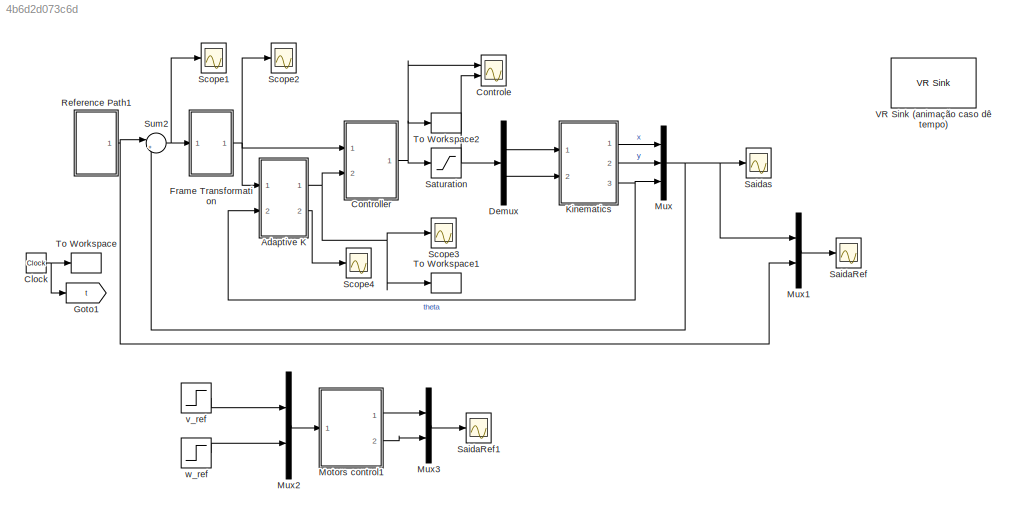
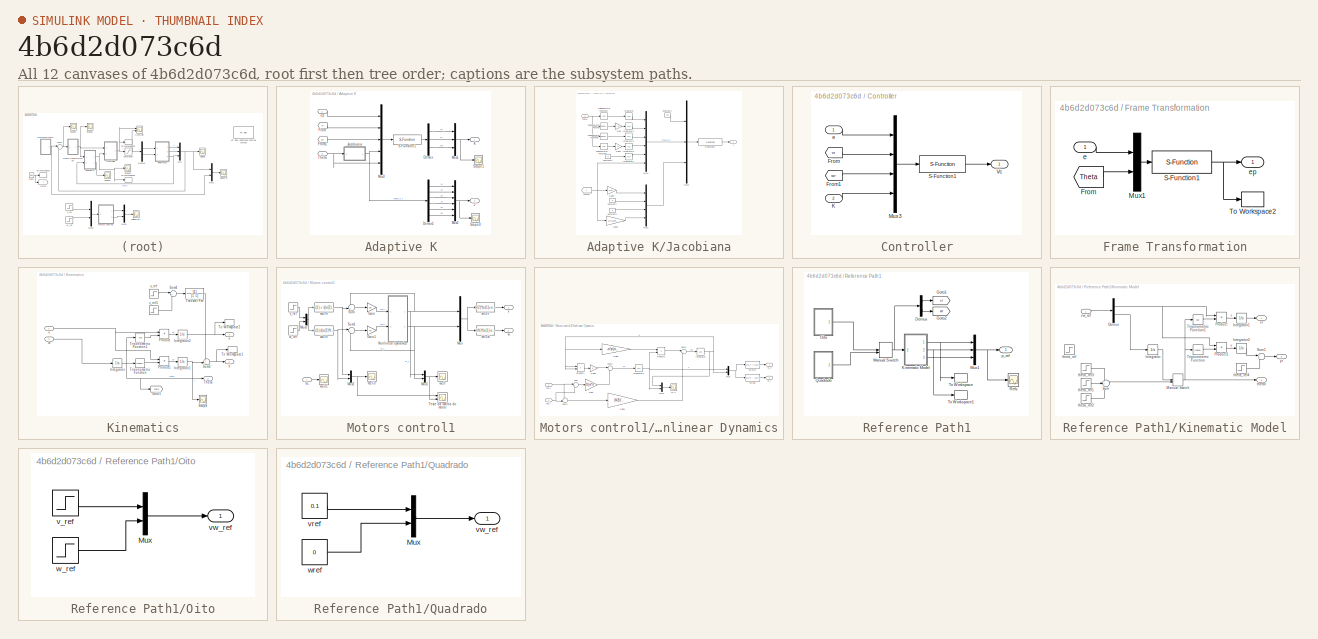
[diagram: thumbnail index - all 12 canvases of the model, root first then tree order]
MODEL slx_4b6d2d073c6d
KIND model
BLOCK [SubSystem] Adaptive K
  FunctionWithSeparateData = off
  MaskHideContents = off
  MinAlgLoopOccurrences = off
  Opaque = off
  Ports = [2, 2]
  PropExecContextOutsideSubsystem = off
  RTWSystemCode = Auto
  RequestExecContextInheritance = off
BLOCK [Demux] Adaptive K/Demux
  DisplayOption = bar
  Outputs = 3
  Ports = [1, 3]
BLOCK [Demux] Adaptive K/Demux1
  DisplayOption = bar
  Outputs = 6
  Ports = [1, 6]
BLOCK [From] Adaptive K/From
  GotoTag = vr
  TagVisibility = global
BLOCK [From] Adaptive K/From1
  GotoTag = wr
  TagVisibility = global
BLOCK [Outport] Adaptive K/J
  IconDisplay = Port number
  Port = 2
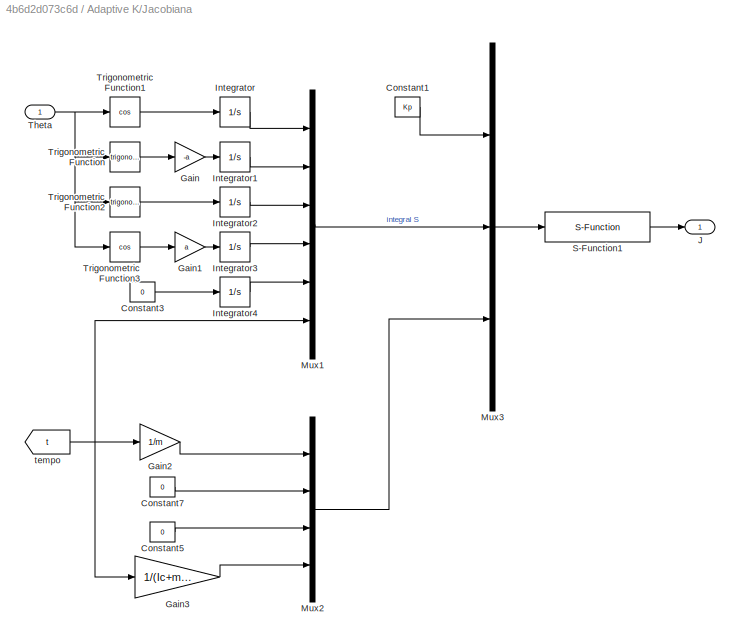
BLOCK [SubSystem] Adaptive K/Jacobiana
  FunctionWithSeparateData = off
  MaskHideContents = off
  MinAlgLoopOccurrences = off
  Opaque = off
  Ports = [1, 1]
  PropExecContextOutsideSubsystem = off
  RTWSystemCode = Auto
  RequestExecContextInheritance = off
BLOCK [Constant] Adaptive K/Jacobiana/Constant1
  SampleTime = Ts
  Value = Kp
BLOCK [Constant] Adaptive K/Jacobiana/Constant3
  SampleTime = Ts
  Value = 0
BLOCK [Constant] Adaptive K/Jacobiana/Constant5
  SampleTime = Ts
  Value = 0
BLOCK [Constant] Adaptive K/Jacobiana/Constant7
  SampleTime = Ts
  Value = 0
BLOCK [Gain] Adaptive K/Jacobiana/Gain
  Gain = -a
  OutDataTypeStr = Inherit: Inherit via internal rule
  ParamDataTypeStr = Inherit: Inherit via internal rule
  SaturateOnIntegerOverflow = off
BLOCK [Gain] Adaptive K/Jacobiana/Gain1
  Gain = a
  OutDataTypeStr = Inherit: Inherit via internal rule
  ParamDataTypeStr = Inherit: Inherit via internal rule
  SaturateOnIntegerOverflow = off
BLOCK [Gain] Adaptive K/Jacobiana/Gain2
  Gain = 1/m
  OutDataTypeStr = Inherit: Inherit via internal rule
  ParamDataTypeStr = Inherit: Inherit via internal rule
  SaturateOnIntegerOverflow = off
BLOCK [Gain] Adaptive K/Jacobiana/Gain3
  Gain = 1/(Ic+m*a*a)
  OutDataTypeStr = Inherit: Inherit via internal rule
  ParamDataTypeStr = Inherit: Inherit via internal rule
  SaturateOnIntegerOverflow = off
BLOCK [Integrator] Adaptive K/Jacobiana/Integrator
  Ports = [1, 1]
BLOCK [Integrator] Adaptive K/Jacobiana/Integrator1
  Ports = [1, 1]
BLOCK [Integrator] Adaptive K/Jacobiana/Integrator2
  Ports = [1, 1]
BLOCK [Integrator] Adaptive K/Jacobiana/Integrator3
  Ports = [1, 1]
BLOCK [Integrator] Adaptive K/Jacobiana/Integrator4
  Ports = [1, 1]
BLOCK [Outport] Adaptive K/Jacobiana/J
  IconDisplay = Port number
BLOCK [Mux] Adaptive K/Jacobiana/Mux1
  DisplayOption = bar
  Inputs = 6
  Ports = [6, 1]
BLOCK [Mux] Adaptive K/Jacobiana/Mux2
  DisplayOption = bar
  Ports = [4, 1]
BLOCK [Mux] Adaptive K/Jacobiana/Mux3
  DisplayOption = bar
  Inputs = 3
  Ports = [3, 1]
BLOCK [S-Function] Adaptive K/Jacobiana/S-Function1
  EnableBusSupport = off
  FunctionName = sfunc_adaptativo_J
  Parameters = Ts
  Ports = [1, 1]
BLOCK [Inport] Adaptive K/Jacobiana/Theta
  IconDisplay = Port number
BLOCK [Trigonometry] Adaptive K/Jacobiana/Trigonometric Function
  Ports = [1, 1]
BLOCK [Trigonometry] Adaptive K/Jacobiana/Trigonometric Function1
  Operator = cos
  Ports = [1, 1]
  SampleTime = Ts
BLOCK [Trigonometry] Adaptive K/Jacobiana/Trigonometric Function2
  Ports = [1, 1]
BLOCK [Trigonometry] Adaptive K/Jacobiana/Trigonometric Function3
  Operator = cos
  Ports = [1, 1]
BLOCK [From] Adaptive K/Jacobiana/tempo
  GotoTag = t
  TagVisibility = global
BLOCK [Outport] Adaptive K/K
  IconDisplay = Port number
BLOCK [Mux] Adaptive K/Mux1
  DisplayOption = bar
  Inputs = 3
  Ports = [3, 1]
BLOCK [Mux] Adaptive K/Mux2
  DisplayOption = bar
  Inputs = 6
  Ports = [6, 1]
BLOCK [Mux] Adaptive K/Mux3
  DisplayOption = bar
  Inputs = 5
  Ports = [5, 1]
BLOCK [S-Function] Adaptive K/S-Function1
  EnableBusSupport = off
  FunctionName = sfunc_adaptativo
  Parameters = Ts
  Ports = [1, 1]
BLOCK [Scope] Adaptive K/Scope1
  DataFormat = StructureWithTime
  Floating = off
  LegendLocations = 0.84833     0.79315    0.051245    0.074988
  LimitDataPoints = off
  NumInputPorts = 1
  Ports = [1]
  SampleTime = 0
  SaveName = ScopeData14
  ShowLegends = on
  TimeRange = 10
  YMax = 220
  YMin = -100
  ZoomMode = xonly
BLOCK [Scope] Adaptive K/Scope4
  DataFormat = StructureWithTime
  Floating = off
  LegendLocations = 0.80819     0.63486     0.13346     0.26523
  LimitDataPoints = off
  NumInputPorts = 1
  Ports = [1]
  SampleTime = 0
  SaveName = ScopeData13
  ShowLegends = on
  TimeRange = 10
BLOCK [Inport] Adaptive K/Theta
  IconDisplay = Port number
  Port = 2
BLOCK [Inport] Adaptive K/ep
  IconDisplay = Port number
BLOCK [Clock] Clock
  Decimation = 1
BLOCK [Scope] Controle
  DataFormat = StructureWithTime
  Floating = off
  LegendLocations = 0.82277     0.80197     0.13278    0.057416\n0.82037     0.32828     0.13756    0.057416
  LimitDataPoints = off
  NumInputPorts = 2
  Ports = [2]
  SampleTime = 0
  SaveName = ScopeData11
  ShowLegends = on
  TimeRange = 10
  YMax = 20~1.3e-08
  YMin = -5~-1e-08
  ZoomMode = yonly
BLOCK [SubSystem] Controller
  FunctionWithSeparateData = off
  MaskHideContents = off
  MinAlgLoopOccurrences = off
  Opaque = off
  Ports = [2, 1]
  PropExecContextOutsideSubsystem = off
  RTWSystemCode = Auto
  RequestExecContextInheritance = off
BLOCK [From] Controller/From
  GotoTag = vr
  TagVisibility = global
BLOCK [From] Controller/From1
  GotoTag = wr
  TagVisibility = global
BLOCK [Inport] Controller/K
  IconDisplay = Port number
  Port = 2
BLOCK [Mux] Controller/Mux3
  DisplayOption = bar
  Ports = [4, 1]
BLOCK [S-Function] Controller/S-Function1
  EnableBusSupport = off
  FunctionName = sfunc_K_thiago
  Parameters = Ts
  Ports = [1, 1]
BLOCK [Outport] Controller/Vc
  IconDisplay = Port number
BLOCK [Inport] Controller/e
  IconDisplay = Port number
BLOCK [Demux] Demux
  DisplayOption = bar
  Outputs = 2
  Ports = [1, 2]
BLOCK [SubSystem] Frame Transformation
  FunctionWithSeparateData = off
  MaskHideContents = off
  MinAlgLoopOccurrences = off
  Opaque = off
  Ports = [1, 1]
  PropExecContextOutsideSubsystem = off
  RTWSystemCode = Auto
  RequestExecContextInheritance = off
BLOCK [From] Frame Transformation/From
  GotoTag = Theta
  TagVisibility = global
BLOCK [Mux] Frame Transformation/Mux1
  DisplayOption = bar
  Inputs = 2
  Ports = [2, 1]
BLOCK [S-Function] Frame Transformation/S-Function1
  EnableBusSupport = off
  FunctionName = sfunc_Ep
  Parameters = Ts
  Ports = [1, 1]
BLOCK [ToWorkspace] Frame Transformation/To Workspace2
  MaxDataPoints = inf
  Ports = [1]
  SampleTime = Ts
  VariableName = ep
BLOCK [Inport] Frame Transformation/e
  IconDisplay = Port number
BLOCK [Outport] Frame Transformation/ep
  IconDisplay = Port number
BLOCK [Goto] Goto1
  GotoTag = t
  TagVisibility = global
BLOCK [SubSystem] Kinematics
  FunctionWithSeparateData = off
  MaskHideContents = off
  MinAlgLoopOccurrences = off
  Opaque = off
  Ports = [2, 3]
  PropExecContextOutsideSubsystem = off
  RTWSystemCode = Auto
  RequestExecContextInheritance = off
BLOCK [Goto] Kinematics/Goto1
  GotoTag = Theta
  TagVisibility = global
BLOCK [Integrator] Kinematics/Integrator
  InitialCondition = thetao
  Ports = [1, 1]
BLOCK [Integrator] Kinematics/Integrator1
  InitialCondition = yo
  Ports = [1, 1]
BLOCK [Integrator] Kinematics/Integrator2
  InitialCondition = xo
  Ports = [1, 1]
BLOCK [Product] Kinematics/Product
  InputSameDT = off
  OutDataTypeStr = Inherit: Inherit via internal rule
  Ports = [2, 1]
  RndMeth = Floor
  SaturateOnIntegerOverflow = off
BLOCK [Product] Kinematics/Product1
  InputSameDT = off
  OutDataTypeStr = Inherit: Inherit via internal rule
  Ports = [2, 1]
  RndMeth = Floor
  SaturateOnIntegerOverflow = off
BLOCK [Scope] Kinematics/Scope
  DataFormat = StructureWithTime
  Floating = off
  LimitDataPoints = off
  NumInputPorts = 1
  Ports = [1]
  SampleTime = 0
  SaveName = ScopeData1
  ShowLegends = off
  TimeRange = 10
  ZoomMode = xonly
BLOCK [Sum] Kinematics/Sum3
  IconShape = round
  InputSameDT = off
  Inputs = ++|
  OutDataTypeStr = Inherit: Inherit via internal rule
  Ports = [2, 1]
  SaturateOnIntegerOverflow = off
BLOCK [Sum] Kinematics/Sum4
  IconShape = round
  InputSameDT = off
  Inputs = |+-
  OutDataTypeStr = Inherit: Inherit via internal rule
  Ports = [2, 1]
  SaturateOnIntegerOverflow = off
BLOCK [Outport] Kinematics/Theta
  IconDisplay = Port number
  Port = 3
BLOCK [ToWorkspace] Kinematics/To Workspace1
  MaxDataPoints = inf
  Ports = [1]
  SampleTime = Ts
  VariableName = y_real
BLOCK [ToWorkspace] Kinematics/To Workspace2
  MaxDataPoints = inf
  Ports = [1]
  SampleTime = Ts
  VariableName = x_real
BLOCK [TransferFcn] Kinematics/Transfer Fcn
  Denominator = [1 1]
BLOCK [Trigonometry] Kinematics/Trigonometric Function
  Ports = [1, 1]
BLOCK [Trigonometry] Kinematics/Trigonometric Function1
  Operator = cos
  Ports = [1, 1]
BLOCK [Inport] Kinematics/v
  IconDisplay = Port number
BLOCK [Step] Kinematics/v_ref
  After = -0.1
  SampleTime = Ts
  Time = 80000
BLOCK [Step] Kinematics/v_ref1
  After = -0.1
  SampleTime = Ts
  Time = 810000
BLOCK [Inport] Kinematics/w
  IconDisplay = Port number
  Port = 2
BLOCK [Outport] Kinematics/x
  IconDisplay = Port number
BLOCK [Outport] Kinematics/y
  IconDisplay = Port number
  Port = 2
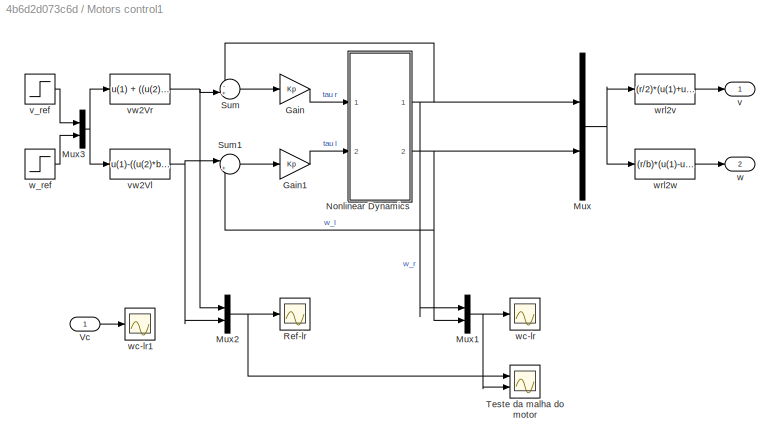
BLOCK [SubSystem] Motors control1
  Commented = on
  FunctionWithSeparateData = off
  MaskHideContents = off
  MinAlgLoopOccurrences = off
  Opaque = off
  Ports = [1, 2]
  PropExecContextOutsideSubsystem = off
  RTWSystemCode = Auto
  RequestExecContextInheritance = off
BLOCK [Gain] Motors control1/Gain
  Gain = Kp
  OutDataTypeStr = Inherit: Inherit via internal rule
  ParamDataTypeStr = Inherit: Inherit via internal rule
  SaturateOnIntegerOverflow = off
BLOCK [Gain] Motors control1/Gain1
  Gain = Kp
  OutDataTypeStr = Inherit: Inherit via internal rule
  ParamDataTypeStr = Inherit: Inherit via internal rule
  SaturateOnIntegerOverflow = off
BLOCK [Mux] Motors control1/Mux
  DisplayOption = bar
  Inputs = 2
  Ports = [2, 1]
BLOCK [Mux] Motors control1/Mux1
  DisplayOption = bar
  Inputs = 2
  Ports = [2, 1]
BLOCK [Mux] Motors control1/Mux2
  DisplayOption = bar
  Inputs = 2
  Ports = [2, 1]
BLOCK [Mux] Motors control1/Mux3
  DisplayOption = bar
  Inputs = 2
  Ports = [2, 1]
BLOCK [SubSystem] Motors control1/Nonlinear Dynamics
  FunctionWithSeparateData = off
  MaskHideContents = off
  MinAlgLoopOccurrences = off
  Opaque = off
  Ports = [2, 2]
  PropExecContextOutsideSubsystem = off
  RTWSystemCode = Auto
  RequestExecContextInheritance = off
BLOCK [Gain] Motors control1/Nonlinear Dynamics/Gain
  Gain = 1/(m*r)
  OutDataTypeStr = Inherit: Inherit via internal rule
  ParamDataTypeStr = Inherit: Inherit via internal rule
  SaturateOnIntegerOverflow = off
BLOCK [Gain] Motors control1/Nonlinear Dynamics/Gain1
  Gain = (b/2)/(r*(m*a*a+Ic))
  OutDataTypeStr = Inherit: Inherit via internal rule
  ParamDataTypeStr = Inherit: Inherit via internal rule
  SaturateOnIntegerOverflow = off
BLOCK [Gain] Motors control1/Nonlinear Dynamics/Gain2
  Gain = -m*a/(m*a*a+Ic)
  OutDataTypeStr = Inherit: Inherit via internal rule
  ParamDataTypeStr = Inherit: Inherit via internal rule
  SaturateOnIntegerOverflow = off
BLOCK [Gain] Motors control1/Nonlinear Dynamics/Gain3
  Gain = a
  OutDataTypeStr = Inherit: Inherit via internal rule
  ParamDataTypeStr = Inherit: Inherit via internal rule
  SaturateOnIntegerOverflow = off
BLOCK [Integrator] Motors control1/Nonlinear Dynamics/Integrator
  Ports = [1, 1]
BLOCK [Integrator] Motors control1/Nonlinear Dynamics/Integrator1
  Ports = [1, 1]
BLOCK [Mux] Motors control1/Nonlinear Dynamics/Mux
  DisplayOption = bar
  Inputs = 2
  Ports = [2, 1]
BLOCK [Mux] Motors control1/Nonlinear Dynamics/Mux1
  DisplayOption = bar
  Inputs = 2
  Ports = [2, 1]
BLOCK [Product] Motors control1/Nonlinear Dynamics/Product1
  InputSameDT = off
  OutDataTypeStr = Inherit: Inherit via internal rule
  Ports = [2, 1]
  RndMeth = Floor
  SaturateOnIntegerOverflow = off
BLOCK [Product] Motors control1/Nonlinear Dynamics/Product2
  InputSameDT = off
  OutDataTypeStr = Inherit: Inherit via internal rule
  Ports = [2, 1]
  RndMeth = Floor
  SampleTime = Ts
  SaturateOnIntegerOverflow = off
BLOCK [Sum] Motors control1/Nonlinear Dynamics/Sum
  IconShape = round
  InputSameDT = off
  Inputs = |++
  OutDataTypeStr = Inherit: Inherit via internal rule
  Ports = [2, 1]
  SaturateOnIntegerOverflow = off
BLOCK [Sum] Motors control1/Nonlinear Dynamics/Sum2
  IconShape = round
  InputSameDT = off
  Inputs = |++
  OutDataTypeStr = Inherit: Inherit via internal rule
  Ports = [2, 1]
  SaturateOnIntegerOverflow = off
BLOCK [Sum] Motors control1/Nonlinear Dynamics/Sum3
  IconShape = round
  InputSameDT = off
  Inputs = |++
  OutDataTypeStr = Inherit: Inherit via internal rule
  Ports = [2, 1]
  SaturateOnIntegerOverflow = off
BLOCK [Sum] Motors control1/Nonlinear Dynamics/Sum4
  IconShape = round
  InputSameDT = off
  Inputs = +-|
  OutDataTypeStr = Inherit: Inherit via internal rule
  Ports = [2, 1]
  SaturateOnIntegerOverflow = off
BLOCK [Inport] Motors control1/Nonlinear Dynamics/tau l
  IconDisplay = Port number
  Port = 2
BLOCK [Inport] Motors control1/Nonlinear Dynamics/tau r
  IconDisplay = Port number
BLOCK [Fcn] Motors control1/Nonlinear Dynamics/vw2Vl1
  Expr = u(1)/r - (u(2)*b/2)/r
BLOCK [Fcn] Motors control1/Nonlinear Dynamics/vw2Vr1
  Expr = u(1)/r + (u(2)*b/2)/r
BLOCK [Scope] Motors control1/Nonlinear Dynamics/w-u
  DataFormat = StructureWithTime
  Floating = off
  LimitDataPoints = off
  NumInputPorts = 1
  Ports = [1]
  SampleTime = 0
  SaveName = ScopeData15
  ShowLegends = off
  TimeRange = 10
  ZoomMode = yonly
BLOCK [Outport] Motors control1/Nonlinear Dynamics/w_l
  IconDisplay = Port number
  Port = 2
BLOCK [Outport] Motors control1/Nonlinear Dynamics/w_r
  IconDisplay = Port number
BLOCK [Scope] Motors control1/Ref-lr
  DataFormat = StructureWithTime
  Floating = off
  NumInputPorts = 1
  Ports = [1]
  SampleTime = 0
  SaveName = ScopeData7
  ShowLegends = off
  YMax = 20
  ZoomMode = xonly
BLOCK [Sum] Motors control1/Sum
  IconShape = round
  InputSameDT = off
  Inputs = -+|
  OutDataTypeStr = Inherit: Inherit via internal rule
  Ports = [2, 1]
  SaturateOnIntegerOverflow = off
BLOCK [Sum] Motors control1/Sum1
  IconShape = round
  InputSameDT = off
  Inputs = |+-
  OutDataTypeStr = Inherit: Inherit via internal rule
  Ports = [2, 1]
  SaturateOnIntegerOverflow = off
BLOCK [Scope] Motors control1/Teste da malha do motor
  DataFormat = StructureWithTime
  Floating = off
  NumInputPorts = 2
  Ports = [2]
  SampleTime = 0
  SaveName = ScopeData10
  ShowLegends = off
  YMax = 5~5
  YMin = -5~-5
  ZoomMode = xonly
BLOCK [Inport] Motors control1/Vc
  IconDisplay = Port number
BLOCK [Outport] Motors control1/v
  IconDisplay = Port number
BLOCK [Step] Motors control1/v_ref
  SampleTime = Ts
  Time = 10
BLOCK [Fcn] Motors control1/vw2Vl
  Expr = u(1)-((u(2)*b)/2)
BLOCK [Fcn] Motors control1/vw2Vr
  Expr = u(1) + ((u(2)*b)/2)
BLOCK [Outport] Motors control1/w
  IconDisplay = Port number
  Port = 2
BLOCK [Step] Motors control1/w_ref
  After = pi/2
  SampleTime = Ts
  Time = 12
BLOCK [Scope] Motors control1/wc-lr
  DataFormat = StructureWithTime
  Floating = off
  NumInputPorts = 1
  Ports = [1]
  SampleTime = 0
  SaveName = ScopeData5
  ShowLegends = off
  YMax = 20
  ZoomMode = xonly
BLOCK [Scope] Motors control1/wc-lr1
  DataFormat = StructureWithTime
  Floating = off
  NumInputPorts = 1
  Ports = [1]
  SampleTime = 0
  SaveName = ScopeData3
  ShowLegends = off
  YMax = 20
  ZoomMode = xonly
BLOCK [Fcn] Motors control1/wrl2v
  Expr = (r/2)*(u(1)+u(2))
BLOCK [Fcn] Motors control1/wrl2w
  Expr = (r/b)*(u(1)-u(2))
BLOCK [Mux] Mux
  DisplayOption = bar
  Inputs = 3
  Ports = [3, 1]
BLOCK [Mux] Mux1
  DisplayOption = bar
  Inputs = 2
  Ports = [2, 1]
BLOCK [Mux] Mux2
  Commented = on
  DisplayOption = bar
  Inputs = 2
  Ports = [2, 1]
BLOCK [Mux] Mux3
  Commented = on
  DisplayOption = bar
  Inputs = 2
  Ports = [2, 1]
BLOCK [SubSystem] Reference Path1
  FunctionWithSeparateData = off
  MaskHideContents = off
  MinAlgLoopOccurrences = off
  Opaque = off
  Ports = [0, 1]
  PropExecContextOutsideSubsystem = off
  RTWSystemCode = Auto
  RequestExecContextInheritance = off
BLOCK [Demux] Reference Path1/Demux
  DisplayOption = bar
  Outputs = 2
  Ports = [1, 2]
BLOCK [Goto] Reference Path1/Goto1
  GotoTag = vr
  TagVisibility = global
BLOCK [Goto] Reference Path1/Goto2
  GotoTag = wr
  TagVisibility = global
BLOCK [SubSystem] Reference Path1/Kinematic Model
  FunctionWithSeparateData = off
  MaskHideContents = off
  MinAlgLoopOccurrences = off
  Opaque = off
  Ports = [1, 3]
  PropExecContextOutsideSubsystem = off
  RTWSystemCode = Auto
  RequestExecContextInheritance = off
BLOCK [Demux] Reference Path1/Kinematic Model/Demux
  DisplayOption = bar
  Outputs = 2
  Ports = [1, 2]
BLOCK [Integrator] Reference Path1/Kinematic Model/Integrator
  Ports = [1, 1]
BLOCK [Integrator] Reference Path1/Kinematic Model/Integrator1
  Ports = [1, 1]
BLOCK [Integrator] Reference Path1/Kinematic Model/Integrator2
  Ports = [1, 1]
BLOCK [ManualSwitch] Reference Path1/Kinematic Model/Manual Switch
  CurrentSetting = 0
BLOCK [Product] Reference Path1/Kinematic Model/Product
  InputSameDT = off
  OutDataTypeStr = Inherit: Inherit via internal rule
  Ports = [2, 1]
  RndMeth = Floor
  SaturateOnIntegerOverflow = off
BLOCK [Product] Reference Path1/Kinematic Model/Product1
  InputSameDT = off
  OutDataTypeStr = Inherit: Inherit via internal rule
  Ports = [2, 1]
  RndMeth = Floor
  SaturateOnIntegerOverflow = off
BLOCK [Sum] Reference Path1/Kinematic Model/Sum
  IconShape = round
  InputSameDT = off
  Inputs = +++
  OutDataTypeStr = Inherit: Inherit via internal rule
  Ports = [3, 1]
  SaturateOnIntegerOverflow = off
BLOCK [Sum] Reference Path1/Kinematic Model/Sum1
  IconShape = round
  InputSameDT = off
  OutDataTypeStr = Inherit: Inherit via internal rule
  Ports = [2, 1]
  SaturateOnIntegerOverflow = off
BLOCK [Trigonometry] Reference Path1/Kinematic Model/Trigonometric Function
  Ports = [1, 1]
BLOCK [Trigonometry] Reference Path1/Kinematic Model/Trigonometric Function1
  Operator = cos
  Ports = [1, 1]
BLOCK [Step] Reference Path1/Kinematic Model/theta_ref
  After = pi
  Before = pi/2
  Commented = on
  Time = 200
BLOCK [Step] Reference Path1/Kinematic Model/theta_ref1
  After = pi/2
  SampleTime = Ts
  Time = 40
BLOCK [Step] Reference Path1/Kinematic Model/theta_ref2
  After = pi/2
  SampleTime = Ts
  Time = 60
BLOCK [Step] Reference Path1/Kinematic Model/theta_ref3
  After = pi/2
  SampleTime = Ts
  Time = 20
BLOCK [Step] Reference Path1/Kinematic Model/theta_ref4
  SampleTime = Ts
  Time = 10000
BLOCK [Outport] Reference Path1/Kinematic Model/thetar
  IconDisplay = Port number
  Port = 3
BLOCK [Inport] Reference Path1/Kinematic Model/vw_ref
  IconDisplay = Port number
BLOCK [Outport] Reference Path1/Kinematic Model/xr
  IconDisplay = Port number
BLOCK [Outport] Reference Path1/Kinematic Model/yr
  IconDisplay = Port number
  Port = 2
BLOCK [ManualSwitch] Reference Path1/Manual Switch
  CurrentSetting = 0
BLOCK [Mux] Reference Path1/Mux1
  DisplayOption = bar
  Inputs = 3
  Ports = [3, 1]
BLOCK [SubSystem] Reference Path1/Oito
  FunctionWithSeparateData = off
  MaskHideContents = off
  MinAlgLoopOccurrences = off
  Opaque = off
  Ports = [0, 1]
  PropExecContextOutsideSubsystem = off
  RTWSystemCode = Auto
  RequestExecContextInheritance = off
BLOCK [Mux] Reference Path1/Oito/Mux
  DisplayOption = bar
  Inputs = 2
  Ports = [2, 1]
BLOCK [Step] Reference Path1/Oito/v_ref
  Before = 1
  SampleTime = Ts
BLOCK [Outport] Reference Path1/Oito/vw_ref
  IconDisplay = Port number
BLOCK [Step] Reference Path1/Oito/w_ref
  After = -0.1
  Before = 0.1
  SampleTime = Ts
  Time = 63
BLOCK [SubSystem] Reference Path1/Quadrado
  FunctionWithSeparateData = off
  MaskHideContents = off
  MinAlgLoopOccurrences = off
  Opaque = off
  Ports = [0, 1]
  PropExecContextOutsideSubsystem = off
  RTWSystemCode = Auto
  RequestExecContextInheritance = off
BLOCK [Mux] Reference Path1/Quadrado/Mux
  DisplayOption = bar
  Inputs = 2
  Ports = [2, 1]
BLOCK [Constant] Reference Path1/Quadrado/vref
  SampleTime = Ts
  Value = 0.1
BLOCK [Outport] Reference Path1/Quadrado/vw_ref
  IconDisplay = Port number
BLOCK [Constant] Reference Path1/Quadrado/wref
  SampleTime = Ts
  Value = 0
BLOCK [Scope] Reference Path1/Refs
  DataFormat = StructureWithTime
  Floating = off
  LegendLocations = 0.31316     0.68317     0.31847     0.14002
  LimitDataPoints = off
  NumInputPorts = 1
  Ports = [1]
  SampleTime = 0
  SaveName = ScopeData12
  ShowLegends = on
  TimeRange = 10
BLOCK [ToWorkspace] Reference Path1/To Workspace
  MaxDataPoints = inf
  Ports = [1]
  SampleTime = Ts
  VariableName = xref
BLOCK [ToWorkspace] Reference Path1/To Workspace1
  MaxDataPoints = inf
  Ports = [1]
  SampleTime = Ts
  VariableName = yref
BLOCK [Outport] Reference Path1/p_ref
  IconDisplay = Port number
BLOCK [Scope] SaidaRef
  DataFormat = StructureWithTime
  Floating = off
  LegendLocations = 0.75901      0.5558     0.11054      0.1432
  LimitDataPoints = off
  NumInputPorts = 1
  Ports = [1]
  SampleTime = 0
  SaveName = ScopeData16
  ShowLegends = on
  TimeRange = 10
  YMax = 27.5
  YMin = -7.5
  ZoomMode = xonly
BLOCK [Scope] SaidaRef1
  Commented = on
  DataFormat = StructureWithTime
  Floating = off
  LegendLocations = 0.75901      0.5558     0.11054      0.1432
  LimitDataPoints = off
  NumInputPorts = 1
  Ports = [1]
  SampleTime = 0
  SaveName = ScopeData6
  ShowLegends = on
  TimeRange = 10
  YMax = 27.5
  YMin = -7.5
  ZoomMode = xonly
BLOCK [Scope] Saidas
  DataFormat = StructureWithTime
  Floating = off
  LegendLocations = 0.81605     0.58831    0.060029    0.074988
  LimitDataPoints = off
  NumInputPorts = 1
  Ports = [1]
  SampleTime = 0
  ShowLegends = on
  TimeRange = 10
  YMax = 100
  ZoomMode = yonly
BLOCK [Saturate] Saturation
  InputPortMap = u0
  LowerLimit = -[inf inf]
  Ports = [1, 1]
  UpperLimit = [inf inf]
BLOCK [Scope] Scope1
  DataFormat = StructureWithTime
  Floating = off
  LegendLocations = 0.85148     0.85832     0.11244    0.082403
  LimitDataPoints = off
  NumInputPorts = 1
  Ports = [1]
  SampleTime = 0
  SaveName = ScopeData2
  ShowLegends = on
  TimeRange = 10
  ZoomMode = yonly
BLOCK [Scope] Scope2
  DataFormat = StructureWithTime
  Floating = off
  LegendLocations = 0.75817     0.85832     0.20574    0.082403
  LimitDataPoints = off
  NumInputPorts = 1
  Ports = [1]
  SampleTime = 0
  SaveName = ScopeData9
  ShowLegends = on
  TimeRange = 10
  ZoomMode = yonly
BLOCK [Scope] Scope3
  DataFormat = StructureWithTime
  Floating = off
  LegendLocations = 0.81513     0.57245     0.12445    0.074988
  LimitDataPoints = off
  NumInputPorts = 1
  Ports = [1]
  SampleTime = 0
  SaveName = ScopeData4
  ShowLegends = on
  TimeRange = 10
  YMax = 300
  ZoomMode = yonly
BLOCK [Scope] Scope4
  DataFormat = StructureWithTime
  Floating = off
  LegendLocations = 0.28982      0.7279     0.42553     0.26523
  LimitDataPoints = off
  NumInputPorts = 1
  Ports = [1]
  SampleTime = 0
  SaveName = ScopeData8
  ShowLegends = on
  TimeRange = 10
BLOCK [Sum] Sum2
  IconShape = round
  InputSameDT = off
  Inputs = |+-
  OutDataTypeStr = Inherit: Inherit via internal rule
  Ports = [2, 1]
  SampleTime = Ts
  SaturateOnIntegerOverflow = off
BLOCK [ToWorkspace] To Workspace
  MaxDataPoints = inf
  Ports = [1]
  SampleTime = Ts
  VariableName = t
BLOCK [ToWorkspace] To Workspace1
  MaxDataPoints = inf
  Ports = [1]
  SampleTime = Ts
  VariableName = K
BLOCK [ToWorkspace] To Workspace2
  MaxDataPoints = inf
  Ports = [1]
  SampleTime = Ts
  VariableName = Vc
BLOCK [Reference] VR Sink (animação caso dê tempo)  REF=vrlib/VR Sink
  AllowVariableSize = off
  AutoView = off
  Commented = on
  InstantiateOnLoad = on
  Ports = []
  RemoteChange = off
  RemoteView = on
  SampleTime = 0.1
  SourceBlock = vrlib/VR Sink
  SourceType = Virtual Reality Sink
  VideoDimensions = []
  ViewEnable = on
BLOCK [Step] v_ref
  Commented = on
  SampleTime = Ts
  Time = 10
BLOCK [Step] w_ref
  After = pi/2
  Commented = on
  SampleTime = Ts
  Time = 20
LINE Adaptive K/Demux1:1 -> Adaptive K/Mux2:1
LINE Adaptive K/Demux1:2 -> Adaptive K/Mux2:2
LINE Adaptive K/Demux1:3 -> Adaptive K/Mux2:3
LINE Adaptive K/Demux1:4 -> Adaptive K/Mux2:4
LINE Adaptive K/Demux1:5 -> Adaptive K/Mux2:5
LINE Adaptive K/Demux1:6 -> Adaptive K/Mux2:6
LINE Adaptive K/Demux:1 -> Adaptive K/Mux1:1
LINE Adaptive K/Demux:2 -> Adaptive K/Mux1:2
LINE Adaptive K/Demux:3 -> Adaptive K/Mux1:3
LINE Adaptive K/From1:1 -> Adaptive K/Mux3:3
LINE Adaptive K/From:1 -> Adaptive K/Mux3:2
LINE Adaptive K/Jacobiana/Constant1:1 -> Adaptive K/Jacobiana/Mux3:1
LINE Adaptive K/Jacobiana/Constant3:1 -> Adaptive K/Jacobiana/Integrator4:1
LINE Adaptive K/Jacobiana/Constant5:1 -> Adaptive K/Jacobiana/Mux2:3
LINE Adaptive K/Jacobiana/Constant7:1 -> Adaptive K/Jacobiana/Mux2:2
LINE Adaptive K/Jacobiana/Gain1:1 -> Adaptive K/Jacobiana/Integrator3:1
LINE Adaptive K/Jacobiana/Gain2:1 -> Adaptive K/Jacobiana/Mux2:1
LINE Adaptive K/Jacobiana/Gain3:1 -> Adaptive K/Jacobiana/Mux2:4
LINE Adaptive K/Jacobiana/Gain:1 -> Adaptive K/Jacobiana/Integrator1:1
LINE Adaptive K/Jacobiana/Integrator1:1 -> Adaptive K/Jacobiana/Mux1:2
LINE Adaptive K/Jacobiana/Integrator2:1 -> Adaptive K/Jacobiana/Mux1:3
LINE Adaptive K/Jacobiana/Integrator3:1 -> Adaptive K/Jacobiana/Mux1:4
LINE Adaptive K/Jacobiana/Integrator4:1 -> Adaptive K/Jacobiana/Mux1:5
LINE Adaptive K/Jacobiana/Integrator:1 -> Adaptive K/Jacobiana/Mux1:1
LINE Adaptive K/Jacobiana/Mux1:1 -> Adaptive K/Jacobiana/Mux3:2
LINE Adaptive K/Jacobiana/Mux2:1 -> Adaptive K/Jacobiana/Mux3:3
LINE Adaptive K/Jacobiana/Mux3:1 -> Adaptive K/Jacobiana/S-Function1:1
LINE Adaptive K/Jacobiana/S-Function1:1 -> Adaptive K/Jacobiana/J:1
NET Adaptive K/Jacobiana/Theta:1 -> Adaptive K/Jacobiana/Trigonometric Function1:1, Adaptive K/Jacobiana/Trigonometric Function2:1, Adaptive K/Jacobiana/Trigonometric Function3:1, Adaptive K/Jacobiana/Trigonometric Function:1
LINE Adaptive K/Jacobiana/Trigonometric Function1:1 -> Adaptive K/Jacobiana/Integrator:1
LINE Adaptive K/Jacobiana/Trigonometric Function2:1 -> Adaptive K/Jacobiana/Integrator2:1
LINE Adaptive K/Jacobiana/Trigonometric Function3:1 -> Adaptive K/Jacobiana/Gain1:1
LINE Adaptive K/Jacobiana/Trigonometric Function:1 -> Adaptive K/Jacobiana/Gain:1
NET Adaptive K/Jacobiana/tempo:1 -> Adaptive K/Jacobiana/Gain2:1, Adaptive K/Jacobiana/Gain3:1, Adaptive K/Jacobiana/Mux1:6
NET Adaptive K/Jacobiana:1 -> Adaptive K/Demux1:1, Adaptive K/Mux3:4
NET Adaptive K/Mux1:1 -> Adaptive K/K:1, Adaptive K/Scope1:1
NET Adaptive K/Mux2:1 -> Adaptive K/J:1, Adaptive K/Scope4:1
LINE Adaptive K/Mux3:1 -> Adaptive K/S-Function1:1
LINE Adaptive K/S-Function1:1 -> Adaptive K/Demux:1
NET Adaptive K/Theta:1 -> Adaptive K/Jacobiana:1, Adaptive K/Mux3:5
LINE Adaptive K/ep:1 -> Adaptive K/Mux3:1
NET Adaptive K:1 -> Controller:2, Scope3:1, To Workspace1:1
LINE Adaptive K:2 -> Scope4:1
NET Clock:1 -> Goto1:1, To Workspace:1
LINE Controller/From1:1 -> Controller/Mux3:3
LINE Controller/From:1 -> Controller/Mux3:2
LINE Controller/K:1 -> Controller/Mux3:4
LINE Controller/Mux3:1 -> Controller/S-Function1:1
LINE Controller/S-Function1:1 -> Controller/Vc:1
LINE Controller/e:1 -> Controller/Mux3:1
NET Controller:1 -> Controle:1, Saturation:1, To Workspace2:1
LINE Demux:1 -> Kinematics:1
LINE Demux:2 -> Kinematics:2
LINE Frame Transformation/From:1 -> Frame Transformation/Mux1:2
LINE Frame Transformation/Mux1:1 -> Frame Transformation/S-Function1:1
NET Frame Transformation/S-Function1:1 -> Frame Transformation/To Workspace2:1, Frame Transformation/ep:1
LINE Frame Transformation/e:1 -> Frame Transformation/Mux1:1
NET Frame Transformation:1 -> Adaptive K:1, Controller:1, Scope2:1
NET Kinematics/Integrator1:1 -> Kinematics/Scope:1, Kinematics/Sum3:2
NET Kinematics/Integrator2:1 -> Kinematics/To Workspace2:1, Kinematics/x:1
NET Kinematics/Integrator:1 -> Kinematics/Goto1:1, Kinematics/Theta:1, Kinematics/Trigonometric Function1:1, Kinematics/Trigonometric Function:1
LINE Kinematics/Product1:1 -> Kinematics/Integrator1:1
LINE Kinematics/Product:1 -> Kinematics/Integrator2:1
NET Kinematics/Sum3:1 -> Kinematics/To Workspace1:1, Kinematics/y:1
LINE Kinematics/Sum4:1 -> Kinematics/Transfer Fcn:1
LINE Kinematics/Transfer Fcn:1 -> Kinematics/Sum3:1
LINE Kinematics/Trigonometric Function1:1 -> Kinematics/Product:2
LINE Kinematics/Trigonometric Function:1 -> Kinematics/Product1:2
NET Kinematics/v:1 -> Kinematics/Product1:1, Kinematics/Product:1
LINE Kinematics/v_ref1:1 -> Kinematics/Sum4:2
LINE Kinematics/v_ref:1 -> Kinematics/Sum4:1
LINE Kinematics/w:1 -> Kinematics/Integrator:1
LINE Kinematics:1 -> Mux:1
LINE Kinematics:2 -> Mux:2
NET Kinematics:3 -> Adaptive K:2, Mux:3
LINE Motors control1/Gain1:1 -> Motors control1/Nonlinear Dynamics:2
LINE Motors control1/Gain:1 -> Motors control1/Nonlinear Dynamics:1
NET Motors control1/Mux1:1 -> Motors control1/Teste da malha do motor:2, Motors control1/wc-lr:1
NET Motors control1/Mux2:1 -> Motors control1/Ref-lr:1, Motors control1/Teste da malha do motor:1
NET Motors control1/Mux3:1 -> Motors control1/vw2Vl:1, Motors control1/vw2Vr:1
NET Motors control1/Mux:1 -> Motors control1/wrl2v:1, Motors control1/wrl2w:1
LINE Motors control1/Nonlinear Dynamics/Gain1:1 -> Motors control1/Nonlinear Dynamics/Sum3:2
LINE Motors control1/Nonlinear Dynamics/Gain2:1 -> Motors control1/Nonlinear Dynamics/Product2:1
LINE Motors control1/Nonlinear Dynamics/Gain3:1 -> Motors control1/Nonlinear Dynamics/Sum2:1
LINE Motors control1/Nonlinear Dynamics/Gain:1 -> Motors control1/Nonlinear Dynamics/Sum2:2
NET Motors control1/Nonlinear Dynamics/Integrator1:1 -> Motors control1/Nonlinear Dynamics/Mux1:2, Motors control1/Nonlinear Dynamics/Mux:1, Motors control1/Nonlinear Dynamics/Product2:2
NET Motors control1/Nonlinear Dynamics/Integrator:1 -> Motors control1/Nonlinear Dynamics/Gain2:1, Motors control1/Nonlinear Dynamics/Mux1:1, Motors control1/Nonlinear Dynamics/Mux:2, Motors control1/Nonlinear Dynamics/Product1:1, Motors control1/Nonlinear Dynamics/Product1:2
LINE Motors control1/Nonlinear Dynamics/Mux1:1 -> Motors control1/Nonlinear Dynamics/w-u:1
NET Motors control1/Nonlinear Dynamics/Mux:1 -> Motors control1/Nonlinear Dynamics/vw2Vl1:1, Motors control1/Nonlinear Dynamics/vw2Vr1:1
LINE Motors control1/Nonlinear Dynamics/Product1:1 -> Motors control1/Nonlinear Dynamics/Gain3:1
LINE Motors control1/Nonlinear Dynamics/Product2:1 -> Motors control1/Nonlinear Dynamics/Sum3:1
LINE Motors control1/Nonlinear Dynamics/Sum2:1 -> Motors control1/Nonlinear Dynamics/Integrator1:1
LINE Motors control1/Nonlinear Dynamics/Sum3:1 -> Motors control1/Nonlinear Dynamics/Integrator:1
LINE Motors control1/Nonlinear Dynamics/Sum4:1 -> Motors control1/Nonlinear Dynamics/Gain1:1
LINE Motors control1/Nonlinear Dynamics/Sum:1 -> Motors control1/Nonlinear Dynamics/Gain:1
NET Motors control1/Nonlinear Dynamics/tau l:1 -> Motors control1/Nonlinear Dynamics/Sum4:2, Motors control1/Nonlinear Dynamics/Sum:2
NET Motors control1/Nonlinear Dynamics/tau r:1 -> Motors control1/Nonlinear Dynamics/Sum4:1, Motors control1/Nonlinear Dynamics/Sum:1
LINE Motors control1/Nonlinear Dynamics/vw2Vl1:1 -> Motors control1/Nonlinear Dynamics/w_l:1
LINE Motors control1/Nonlinear Dynamics/vw2Vr1:1 -> Motors control1/Nonlinear Dynamics/w_r:1
NET Motors control1/Nonlinear Dynamics:1 -> Motors control1/Mux1:1, Motors control1/Mux:1, Motors control1/Sum:1
NET Motors control1/Nonlinear Dynamics:2 -> Motors control1/Mux1:2, Motors control1/Mux:2, Motors control1/Sum1:2
LINE Motors control1/Sum1:1 -> Motors control1/Gain1:1
LINE Motors control1/Sum:1 -> Motors control1/Gain:1
LINE Motors control1/Vc:1 -> Motors control1/wc-lr1:1
LINE Motors control1/v_ref:1 -> Motors control1/Mux3:1
NET Motors control1/vw2Vl:1 -> Motors control1/Mux2:2, Motors control1/Sum1:1
NET Motors control1/vw2Vr:1 -> Motors control1/Mux2:1, Motors control1/Sum:2
LINE Motors control1/w_ref:1 -> Motors control1/Mux3:2
LINE Motors control1/wrl2v:1 -> Motors control1/v:1
LINE Motors control1/wrl2w:1 -> Motors control1/w:1
LINE Motors control1:1 -> Mux3:1
LINE Motors control1:2 -> Mux3:2
LINE Mux1:1 -> SaidaRef:1
LINE Mux2:1 -> Motors control1:1
LINE Mux3:1 -> SaidaRef1:1
NET Mux:1 -> Mux1:1, Saidas:1, Sum2:2
LINE Reference Path1/Demux:1 -> Reference Path1/Goto1:1
LINE Reference Path1/Demux:2 -> Reference Path1/Goto2:1
NET Reference Path1/Kinematic Model/Demux:1 -> Reference Path1/Kinematic Model/Product1:1, Reference Path1/Kinematic Model/Product:1
LINE Reference Path1/Kinematic Model/Demux:2 -> Reference Path1/Kinematic Model/Integrator:1
LINE Reference Path1/Kinematic Model/Integrator1:1 -> Reference Path1/Kinematic Model/xr:1
LINE Reference Path1/Kinematic Model/Integrator2:1 -> Reference Path1/Kinematic Model/Sum1:1
LINE Reference Path1/Kinematic Model/Integrator:1 -> Reference Path1/Kinematic Model/Manual Switch:1
NET Reference Path1/Kinematic Model/Manual Switch:1 -> Reference Path1/Kinematic Model/Trigonometric Function1:1, Reference Path1/Kinematic Model/Trigonometric Function:1, Reference Path1/Kinematic Model/thetar:1
LINE Reference Path1/Kinematic Model/Product1:1 -> Reference Path1/Kinematic Model/Integrator2:1
LINE Reference Path1/Kinematic Model/Product:1 -> Reference Path1/Kinematic Model/Integrator1:1
LINE Reference Path1/Kinematic Model/Sum1:1 -> Reference Path1/Kinematic Model/yr:1
LINE Reference Path1/Kinematic Model/Sum:1 -> Reference Path1/Kinematic Model/Manual Switch:2
LINE Reference Path1/Kinematic Model/Trigonometric Function1:1 -> Reference Path1/Kinematic Model/Product:2
LINE Reference Path1/Kinematic Model/Trigonometric Function:1 -> Reference Path1/Kinematic Model/Product1:2
LINE Reference Path1/Kinematic Model/theta_ref1:1 -> Reference Path1/Kinematic Model/Sum:2
LINE Reference Path1/Kinematic Model/theta_ref2:1 -> Reference Path1/Kinematic Model/Sum:3
LINE Reference Path1/Kinematic Model/theta_ref3:1 -> Reference Path1/Kinematic Model/Sum:1
LINE Reference Path1/Kinematic Model/theta_ref4:1 -> Reference Path1/Kinematic Model/Sum1:2
LINE Reference Path1/Kinematic Model/vw_ref:1 -> Reference Path1/Kinematic Model/Demux:1
NET Reference Path1/Kinematic Model:1 -> Reference Path1/Mux1:1, Reference Path1/To Workspace:1
NET Reference Path1/Kinematic Model:2 -> Reference Path1/Mux1:2, Reference Path1/To Workspace1:1
LINE Reference Path1/Kinematic Model:3 -> Reference Path1/Mux1:3
NET Reference Path1/Manual Switch:1 -> Reference Path1/Demux:1, Reference Path1/Kinematic Model:1
NET Reference Path1/Mux1:1 -> Reference Path1/Refs:1, Reference Path1/p_ref:1
LINE Reference Path1/Oito/Mux:1 -> Reference Path1/Oito/vw_ref:1
LINE Reference Path1/Oito/v_ref:1 -> Reference Path1/Oito/Mux:1
LINE Reference Path1/Oito/w_ref:1 -> Reference Path1/Oito/Mux:2
LINE Reference Path1/Oito:1 -> Reference Path1/Manual Switch:1
LINE Reference Path1/Quadrado/Mux:1 -> Reference Path1/Quadrado/vw_ref:1
LINE Reference Path1/Quadrado/vref:1 -> Reference Path1/Quadrado/Mux:1
LINE Reference Path1/Quadrado/wref:1 -> Reference Path1/Quadrado/Mux:2
LINE Reference Path1/Quadrado:1 -> Reference Path1/Manual Switch:2
NET Reference Path1:1 -> Mux1:2, Sum2:1
NET Saturation:1 -> Controle:2, Demux:1
NET Sum2:1 -> Frame Transformation:1, Scope1:1
LINE v_ref:1 -> Mux2:1
LINE w_ref:1 -> Mux2:2
note: NET lines group one-source signal fan-out (src -> all destinations, sorted); 1:1 wires keep LINE
